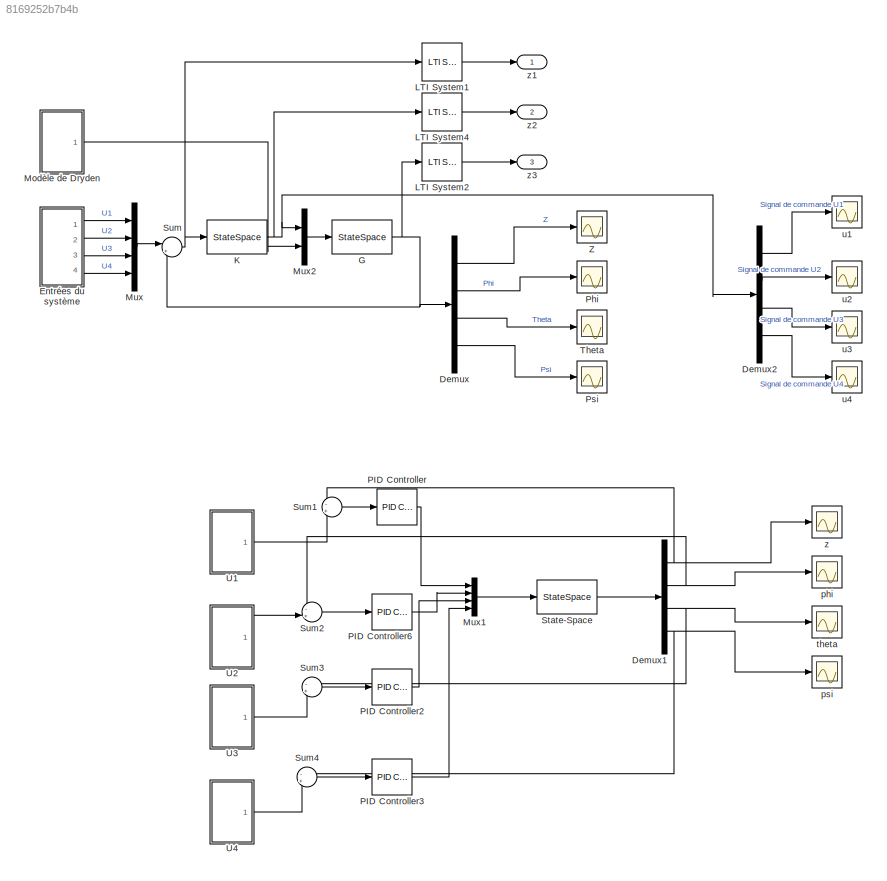
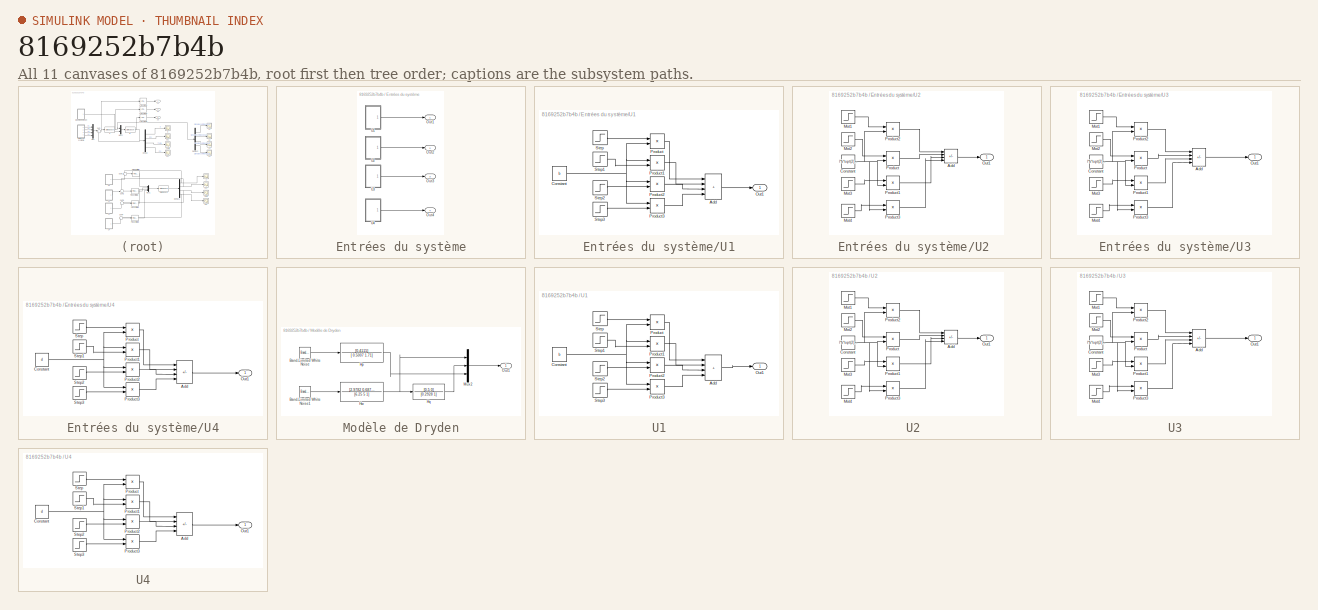
[diagram: thumbnail index - all 11 canvases of the model, root first then tree order]
MODEL slx_8169252b7b4b
KIND model
CONFIG AbsTol = auto
CONFIG EnableMultiTasking = on
CONFIG FixedStep = auto
CONFIG MaxStep = auto
CONFIG MinStep = auto
CONFIG RelTol = 1e-3
CONFIG SampleTimeConstraint = Unconstrained
CONFIG SolverName = VariableStepAuto
CONFIG StartTime = 0.0
CONFIG StopTime = 10
BLOCK [Demux] Demux
  Ports = [1, 4]
BLOCK [Demux] Demux1
  Ports = [1, 4]
BLOCK [Demux] Demux2
  Ports = [1, 4]
BLOCK [SubSystem] Entrées du système
  Ports = [0, 4]
  RequestExecContextInheritance = off
BLOCK [Outport] Entrées du système/Out1
BLOCK [Outport] Entrées du système/Out2
  Port = 2
BLOCK [Outport] Entrées du système/Out3
  Port = 3
BLOCK [Outport] Entrées du système/Out4
  Port = 4
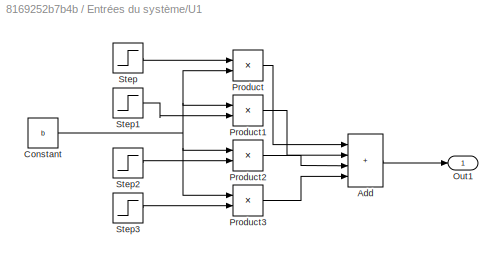
BLOCK [SubSystem] Entrées du système/U1
  Ports = [0, 1]
  RequestExecContextInheritance = off
BLOCK [Sum] Entrées du système/U1/Add
  IconShape = rectangular
  Inputs = ++++
  Ports = [4, 1]
BLOCK [Constant] Entrées du système/U1/Constant
  Value = b
BLOCK [Outport] Entrées du système/U1/Out1
BLOCK [Product] Entrées du système/U1/Product
  Ports = [2, 1]
BLOCK [Product] Entrées du système/U1/Product1
  Ports = [2, 1]
BLOCK [Product] Entrées du système/U1/Product2
  Ports = [2, 1]
BLOCK [Product] Entrées du système/U1/Product3
  Ports = [2, 1]
BLOCK [Step] Entrées du système/U1/Step
  After = om
  SampleTime = 0
  Time = 0
BLOCK [Step] Entrées du système/U1/Step1
  After = om
  SampleTime = 0
  Time = 0
BLOCK [Step] Entrées du système/U1/Step2
  After = om
  SampleTime = 0
  Time = 0
BLOCK [Step] Entrées du système/U1/Step3
  After = om
  SampleTime = 0
  Time = 0
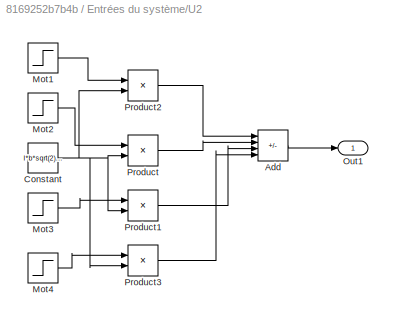
BLOCK [SubSystem] Entrées du système/U2 
  Ports = [0, 1]
  RequestExecContextInheritance = off
BLOCK [Sum] Entrées du système/U2 /Add
  IconShape = rectangular
  Inputs = ++--
  Ports = [4, 1]
BLOCK [Constant] Entrées du système/U2 /Constant
  Value = l*b*sqrt(2)/2
BLOCK [Step] Entrées du système/U2 /Mot1
  After = om
  SampleTime = 0
  Time = 2
BLOCK [Step] Entrées du système/U2 /Mot2
  After = om
  SampleTime = 0
  Time = 2
BLOCK [Step] Entrées du système/U2 /Mot3
  After = om2
  SampleTime = 0
  Time = 2
BLOCK [Step] Entrées du système/U2 /Mot4
  After = om2
  SampleTime = 0
  Time = 2
BLOCK [Outport] Entrées du système/U2 /Out1
BLOCK [Product] Entrées du système/U2 /Product
  Ports = [2, 1]
BLOCK [Product] Entrées du système/U2 /Product1
  Ports = [2, 1]
BLOCK [Product] Entrées du système/U2 /Product2
  Ports = [2, 1]
BLOCK [Product] Entrées du système/U2 /Product3
  Ports = [2, 1]
BLOCK [SubSystem] Entrées du système/U3
  Ports = [0, 1]
  RequestExecContextInheritance = off
BLOCK [Sum] Entrées du système/U3/Add
  IconShape = rectangular
  Inputs = +--+
  Ports = [4, 1]
BLOCK [Constant] Entrées du système/U3/Constant
  Value = l*b*sqrt(2)/2
BLOCK [Step] Entrées du système/U3/Mot1
  After = om
  SampleTime = 0
  Time = 4
BLOCK [Step] Entrées du système/U3/Mot2
  After = om2
  SampleTime = 0
  Time = 4
BLOCK [Step] Entrées du système/U3/Mot3
  After = om2
  SampleTime = 0
  Time = 4
BLOCK [Step] Entrées du système/U3/Mot4
  After = om
  SampleTime = 0
  Time = 4
BLOCK [Outport] Entrées du système/U3/Out1
BLOCK [Product] Entrées du système/U3/Product
  Ports = [2, 1]
BLOCK [Product] Entrées du système/U3/Product1
  Ports = [2, 1]
BLOCK [Product] Entrées du système/U3/Product2
  Ports = [2, 1]
BLOCK [Product] Entrées du système/U3/Product3
  Ports = [2, 1]
BLOCK [SubSystem] Entrées du système/U4
  Ports = [0, 1]
  RequestExecContextInheritance = off
BLOCK [Sum] Entrées du système/U4/Add
  IconShape = rectangular
  Inputs = +-+-
  Ports = [4, 1]
BLOCK [Constant] Entrées du système/U4/Constant
  Value = d
BLOCK [Outport] Entrées du système/U4/Out1
BLOCK [Product] Entrées du système/U4/Product
  Ports = [2, 1]
BLOCK [Product] Entrées du système/U4/Product1
  Ports = [2, 1]
BLOCK [Product] Entrées du système/U4/Product2
  Ports = [2, 1]
BLOCK [Product] Entrées du système/U4/Product3
  Ports = [2, 1]
BLOCK [Step] Entrées du système/U4/Step
  After = om
  SampleTime = 0
  Time = 6
BLOCK [Step] Entrées du système/U4/Step1
  After = om2
  SampleTime = 0
  Time = 6
BLOCK [Step] Entrées du système/U4/Step2
  After = om
  SampleTime = 0
  Time = 6
BLOCK [Step] Entrées du système/U4/Step3
  After = om2
  SampleTime = 0
  Time = 6
BLOCK [StateSpace] G
  A = A
  B = BW
  C = C
  D = DW
  InitialCondition = 0
  Ports = [1, 1]
BLOCK [StateSpace] K
  A = K.A
  B = K.B
  C = K.C
  D = K.D
  InitialCondition = 0
  Ports = [1, 1]
BLOCK [Reference] LTI System1  REF=cstblocks/LTI System
  Ports = [1, 1]
  SourceBlock = cstblocks/LTI System
  SourceProductBaseCode = CT
  SourceType = LTI Block
BLOCK [Reference] LTI System2  REF=cstblocks/LTI System
  Ports = [1, 1]
  SourceBlock = cstblocks/LTI System
  SourceProductBaseCode = CT
  SourceType = LTI Block
BLOCK [Reference] LTI System4  REF=cstblocks/LTI System
  Ports = [1, 1]
  SourceBlock = cstblocks/LTI System
  SourceProductBaseCode = CT
  SourceType = LTI Block
BLOCK [SubSystem] Modèle de Dryden
  Ports = [0, 1]
  RequestExecContextInheritance = off
BLOCK [Reference] Modèle de Dryden/Band-Limited White Noise  REF=simulink/Sources/Band-Limited
White Noise
  Ports = [0, 1]
  SourceBlock = simulink/Sources/Band-Limited\nWhite Noise
  SourceProductBaseCode = SL
  SourceType = Band-Limited White Noise.
BLOCK [Reference] Modèle de Dryden/Band-Limited White Noise1  REF=simulink/Sources/Band-Limited
White Noise
  Ports = [0, 1]
  SourceBlock = simulink/Sources/Band-Limited\nWhite Noise
  SourceProductBaseCode = SL
  SourceType = Band-Limited White Noise.
BLOCK [TransferFcn] Modèle de Dryden/Hp
  Denominator = [ 0.5007 1.71]
  Numerator = [0.4115]
BLOCK [TransferFcn] Modèle de Dryden/Hq
  Denominator = [0.2928 1]
  Numerator = [0.5 0]
BLOCK [TransferFcn] Modèle de Dryden/Hw
  Denominator = [6.25 5 1]
  Numerator = [2.9782 0.6878]
BLOCK [Mux] Modèle de Dryden/Mux2
  DisplayOption = bar
  Inputs = 3
  Ports = [3, 1]
BLOCK [Outport] Modèle de Dryden/Out1
BLOCK [Mux] Mux
  DisplayOption = bar
  Ports = [4, 1]
BLOCK [Mux] Mux1
  DisplayOption = bar
  Ports = [4, 1]
BLOCK [Mux] Mux2
  DisplayOption = bar
  Inputs = 2
  Ports = [2, 1]
BLOCK [Reference] PID Controller  REF=pid_lib/PID Controller
  Ports = [1, 1]
  SourceBlock = pid_lib/PID Controller
  SourceProductBaseCode = SL
  SourceType = PID 1dof
BLOCK [Reference] PID Controller2  REF=pid_lib/PID Controller
  Ports = [1, 1]
  SourceBlock = pid_lib/PID Controller
  SourceProductBaseCode = SL
  SourceType = PID 1dof
BLOCK [Reference] PID Controller3  REF=pid_lib/PID Controller
  Ports = [1, 1]
  SourceBlock = pid_lib/PID Controller
  SourceProductBaseCode = SL
  SourceType = PID 1dof
BLOCK [Reference] PID Controller6  REF=pid_lib/PID Controller
  Ports = [1, 1]
  SourceBlock = pid_lib/PID Controller
  SourceProductBaseCode = SL
  SourceType = PID 1dof
BLOCK [Scope] Phi
  Floating = off
  NumInputPorts = 1
  Ports = [1]
  ScopeSpecificationString = Simulink.scopes.TimeScopeBlockCfg('CurrentConfiguration', extmgr.ConfigurationSet(extmgr.Configuration('Core','General UI',true,'FigureColor',[0.8 0.8 0.8]),extmgr.Configuration('Core','Source UI',true),extmgr.Configuration('Sources','WiredSimulink',true,'DataLoggingVariableName','ScopeData5'),extmgr.Configuration('Visuals','Time Domain',true,'SerializedDisplays',{struct('MinYLimReal','-0.35829','...<+1695ch>
BLOCK [Scope] Psi
  Floating = off
  NumInputPorts = 1
  Ports = [1]
  ScopeSpecificationString = Simulink.scopes.TimeScopeBlockCfg('CurrentConfiguration', extmgr.ConfigurationSet(extmgr.Configuration('Core','General UI',true,'FigureColor',[0.831372549019608 0.815686274509804 0.784313725490196]),extmgr.Configuration('Core','Source UI',true),extmgr.Configuration('Sources','WiredSimulink',true,'DataLoggingVariableName','ScopeData1'),extmgr.Configuration('Visuals','Time Domain',true,'SerializedDi...<+1697ch>
BLOCK [StateSpace] State-Space
  A = A
  B = B
  C = C
  D = D
  InitialCondition = 0
  Ports = [1, 1]
BLOCK [Sum] Sum
  Inputs = |+-
  Ports = [2, 1]
BLOCK [Sum] Sum1
  Inputs = -+
  Ports = [2, 1]
BLOCK [Sum] Sum2
  Inputs = -+
  Ports = [2, 1]
BLOCK [Sum] Sum3
  Inputs = -+
  Ports = [2, 1]
BLOCK [Sum] Sum4
  Inputs = -+
  Ports = [2, 1]
BLOCK [Scope] Theta
  Floating = off
  NumInputPorts = 1
  Ports = [1]
  ScopeSpecificationString = Simulink.scopes.TimeScopeBlockCfg('CurrentConfiguration', extmgr.ConfigurationSet(extmgr.Configuration('Core','General UI',true,'FigureColor',[0.831372549019608 0.815686274509804 0.784313725490196]),extmgr.Configuration('Core','Source UI',true),extmgr.Configuration('Sources','WiredSimulink',true),extmgr.Configuration('Visuals','Time Domain',true,'SerializedDisplays',{struct('MinYLimReal','-0.0397'...<+1660ch>
BLOCK [SubSystem] U1
  Ports = [0, 1]
  RequestExecContextInheritance = off
BLOCK [Sum] U1/Add
  IconShape = rectangular
  Inputs = ++++
  Ports = [4, 1]
BLOCK [Constant] U1/Constant
  Value = b
BLOCK [Outport] U1/Out1
BLOCK [Product] U1/Product
  Ports = [2, 1]
BLOCK [Product] U1/Product1
  Ports = [2, 1]
BLOCK [Product] U1/Product2
  Ports = [2, 1]
BLOCK [Product] U1/Product3
  Ports = [2, 1]
BLOCK [Step] U1/Step
  After = om
  SampleTime = 0
  Time = 0
BLOCK [Step] U1/Step1
  After = om
  SampleTime = 0
  Time = 0
BLOCK [Step] U1/Step2
  After = om
  SampleTime = 0
  Time = 0
BLOCK [Step] U1/Step3
  After = om
  SampleTime = 0
  Time = 0
BLOCK [SubSystem] U2 
  Ports = [0, 1]
  RequestExecContextInheritance = off
BLOCK [Sum] U2 /Add
  IconShape = rectangular
  Inputs = ++--
  Ports = [4, 1]
BLOCK [Constant] U2 /Constant
  Value = l*b*sqrt(2)/2
BLOCK [Step] U2 /Mot1
  After = om
  SampleTime = 0
  Time = 2
BLOCK [Step] U2 /Mot2
  After = om
  SampleTime = 0
  Time = 2
BLOCK [Step] U2 /Mot3
  After = om2
  SampleTime = 0
  Time = 2
BLOCK [Step] U2 /Mot4
  After = om2
  SampleTime = 0
  Time = 2
BLOCK [Outport] U2 /Out1
BLOCK [Product] U2 /Product
  Ports = [2, 1]
BLOCK [Product] U2 /Product1
  Ports = [2, 1]
BLOCK [Product] U2 /Product2
  Ports = [2, 1]
BLOCK [Product] U2 /Product3
  Ports = [2, 1]
BLOCK [SubSystem] U3
  Ports = [0, 1]
  RequestExecContextInheritance = off
BLOCK [Sum] U3/Add
  IconShape = rectangular
  Inputs = +--+
  Ports = [4, 1]
BLOCK [Constant] U3/Constant
  Value = l*b*sqrt(2)/2
BLOCK [Step] U3/Mot1
  After = om
  SampleTime = 0
  Time = 2
BLOCK [Step] U3/Mot2
  After = om2
  SampleTime = 0
  Time = 2
BLOCK [Step] U3/Mot3
  After = om2
  SampleTime = 0
  Time = 2
BLOCK [Step] U3/Mot4
  After = om
  SampleTime = 0
  Time = 2
BLOCK [Outport] U3/Out1
BLOCK [Product] U3/Product
  Ports = [2, 1]
BLOCK [Product] U3/Product1
  Ports = [2, 1]
BLOCK [Product] U3/Product2
  Ports = [2, 1]
BLOCK [Product] U3/Product3
  Ports = [2, 1]
BLOCK [SubSystem] U4
  Ports = [0, 1]
  RequestExecContextInheritance = off
BLOCK [Sum] U4/Add
  IconShape = rectangular
  Inputs = +-+-
  Ports = [4, 1]
BLOCK [Constant] U4/Constant
  Value = d
BLOCK [Outport] U4/Out1
BLOCK [Product] U4/Product
  Ports = [2, 1]
BLOCK [Product] U4/Product1
  Ports = [2, 1]
BLOCK [Product] U4/Product2
  Ports = [2, 1]
BLOCK [Product] U4/Product3
  Ports = [2, 1]
BLOCK [Step] U4/Step
  After = om
  SampleTime = 0
  Time = 2
BLOCK [Step] U4/Step1
  After = om2
  SampleTime = 0
  Time = 2
BLOCK [Step] U4/Step2
  After = om
  SampleTime = 0
  Time = 2
BLOCK [Step] U4/Step3
  After = om2
  SampleTime = 0
  Time = 2
BLOCK [Scope] Z
  Floating = off
  NumInputPorts = 1
  Ports = [1]
  ScopeSpecificationString = Simulink.scopes.TimeScopeBlockCfg('CurrentConfiguration', extmgr.ConfigurationSet(extmgr.Configuration('Core','General UI',true,'FigureColor',[0.8 0.8 0.8]),extmgr.Configuration('Core','Source UI',true),extmgr.Configuration('Sources','WiredSimulink',true,'DataLoggingVariableName','ScopeData4'),extmgr.Configuration('Visuals','Time Domain',true,'SerializedDisplays',{struct('MinYLimReal','-0.65869','...<+1691ch>
BLOCK [Scope] phi
  Floating = off
  NumInputPorts = 1
  Ports = [1]
  ScopeSpecificationString = Simulink.scopes.TimeScopeBlockCfg('CurrentConfiguration', extmgr.ConfigurationSet(extmgr.Configuration('Core','General UI',true),extmgr.Configuration('Core','Source UI',true),extmgr.Configuration('Sources','WiredSimulink',true,'DataLoggingVariableName','ScopeData1'),extmgr.Configuration('Visuals','Time Domain',true,'SerializedDisplays',{struct('MinYLimReal','-0.04407','MaxYLimReal','0.39665','YLab...<+1436ch>
BLOCK [Scope] psi
  Floating = off
  NumInputPorts = 1
  Ports = [1]
  ScopeSpecificationString = Simulink.scopes.TimeScopeBlockCfg('CurrentConfiguration', extmgr.ConfigurationSet(extmgr.Configuration('Core','General UI',true),extmgr.Configuration('Core','Source UI',true),extmgr.Configuration('Sources','WiredSimulink',true,'DataLoggingVariableName','ScopeData2'),extmgr.Configuration('Visuals','Time Domain',true,'SerializedDisplays',{struct('MinYLimReal','-0.00659','MaxYLimReal','0.05935','YLab...<+1461ch>
BLOCK [Scope] theta
  Floating = off
  NumInputPorts = 1
  Ports = [1]
  ScopeSpecificationString = Simulink.scopes.TimeScopeBlockCfg('CurrentConfiguration', extmgr.ConfigurationSet(extmgr.Configuration('Core','General UI',true),extmgr.Configuration('Core','Source UI',true),extmgr.Configuration('Sources','WiredSimulink',true,'DataLoggingVariableName','ScopeData3'),extmgr.Configuration('Visuals','Time Domain',true,'SerializedDisplays',{struct('MinYLimReal','-0.04476','MaxYLimReal','0.40281','YLab...<+1461ch>
BLOCK [Scope] u1
  Floating = off
  NumInputPorts = 1
  Ports = [1]
  ScopeSpecificationString = Simulink.scopes.TimeScopeBlockCfg('CurrentConfiguration', extmgr.ConfigurationSet(extmgr.Configuration('Core','General UI',true,'FigureColor',[0.831372549019608 0.815686274509804 0.784313725490196]),extmgr.Configuration('Core','Source UI',true),extmgr.Configuration('Sources','WiredSimulink',true,'DataLoggingVariableName','ScopeData1'),extmgr.Configuration('Visuals','Time Domain',true,'SerializedDi...<+1841ch>
BLOCK [Scope] u2
  Floating = off
  NumInputPorts = 1
  Ports = [1]
  ScopeSpecificationString = Simulink.scopes.TimeScopeBlockCfg('CurrentConfiguration', extmgr.ConfigurationSet(extmgr.Configuration('Core','General UI',true,'FigureColor',[0.831372549019608 0.815686274509804 0.784313725490196]),extmgr.Configuration('Core','Source UI',true),extmgr.Configuration('Sources','WiredSimulink',true,'DataLoggingVariableName','ScopeData2'),extmgr.Configuration('Visuals','Time Domain',true,'SerializedDi...<+1860ch>
BLOCK [Scope] u3
  Floating = off
  NumInputPorts = 1
  Ports = [1]
  ScopeSpecificationString = Simulink.scopes.TimeScopeBlockCfg('CurrentConfiguration', extmgr.ConfigurationSet(extmgr.Configuration('Core','General UI',true,'FigureColor',[0.831372549019608 0.815686274509804 0.784313725490196]),extmgr.Configuration('Core','Source UI',true),extmgr.Configuration('Sources','WiredSimulink',true,'DataLoggingVariableName','ScopeData3'),extmgr.Configuration('Visuals','Time Domain',true,'SerializedDi...<+1860ch>
BLOCK [Scope] u4
  Floating = off
  NumInputPorts = 1
  Ports = [1]
  ScopeSpecificationString = Simulink.scopes.TimeScopeBlockCfg('CurrentConfiguration', extmgr.ConfigurationSet(extmgr.Configuration('Core','General UI',true,'FigureColor',[0.831372549019608 0.815686274509804 0.784313725490196]),extmgr.Configuration('Core','Source UI',true),extmgr.Configuration('Sources','WiredSimulink',true,'DataLoggingVariableName','ScopeData4'),extmgr.Configuration('Visuals','Time Domain',true,'SerializedDi...<+1860ch>
BLOCK [Scope] z
  Floating = off
  NumInputPorts = 1
  Ports = [1]
  ScopeSpecificationString = Simulink.scopes.TimeScopeBlockCfg('CurrentConfiguration', extmgr.ConfigurationSet(extmgr.Configuration('Core','General UI',true),extmgr.Configuration('Core','Source UI',true),extmgr.Configuration('Sources','WiredSimulink',true,'DataLoggingVariableName','ScopeData4'),extmgr.Configuration('Visuals','Time Domain',true,'SerializedDisplays',{struct('MinYLimReal','-0.75088','MaxYLimReal','6.75789','YLab...<+1745ch>
BLOCK [Outport] z1
BLOCK [Outport] z2
  Port = 2
BLOCK [Outport] z3
  Port = 3
NET Demux1:1 -> Sum1:1, z:1
NET Demux1:2 -> Sum2:1, phi:1
NET Demux1:3 -> Sum3:1, theta:1
NET Demux1:4 -> Sum4:1, psi:1
LINE Demux2:1 -> u1:1
LINE Demux2:2 -> u2:1
LINE Demux2:3 -> u3:1
LINE Demux2:4 -> u4:1
LINE Demux:1 -> Z:1
LINE Demux:2 -> Phi:1
LINE Demux:3 -> Theta:1
LINE Demux:4 -> Psi:1
LINE Entrées du système/U1/Add:1 -> Entrées du système/U1/Out1:1
NET Entrées du système/U1/Constant:1 -> Entrées du système/U1/Product1:1, Entrées du système/U1/Product2:1, Entrées du système/U1/Product3:1, Entrées du système/U1/Product:2
LINE Entrées du système/U1/Product1:1 -> Entrées du système/U1/Add:2
LINE Entrées du système/U1/Product2:1 -> Entrées du système/U1/Add:3
LINE Entrées du système/U1/Product3:1 -> Entrées du système/U1/Add:4
LINE Entrées du système/U1/Product:1 -> Entrées du système/U1/Add:1
LINE Entrées du système/U1/Step1:1 -> Entrées du système/U1/Product1:2
LINE Entrées du système/U1/Step2:1 -> Entrées du système/U1/Product2:2
LINE Entrées du système/U1/Step3:1 -> Entrées du système/U1/Product3:2
LINE Entrées du système/U1/Step:1 -> Entrées du système/U1/Product:1
LINE Entrées du système/U1:1 -> Entrées du système/Out1:1
LINE Entrées du système/U2 /Add:1 -> Entrées du système/U2 /Out1:1
NET Entrées du système/U2 /Constant:1 -> Entrées du système/U2 /Product1:2, Entrées du système/U2 /Product2:2, Entrées du système/U2 /Product3:2, Entrées du système/U2 /Product:2
LINE Entrées du système/U2 /Mot1:1 -> Entrées du système/U2 /Product2:1
LINE Entrées du système/U2 /Mot2:1 -> Entrées du système/U2 /Product:1
LINE Entrées du système/U2 /Mot3:1 -> Entrées du système/U2 /Product1:1
LINE Entrées du système/U2 /Mot4:1 -> Entrées du système/U2 /Product3:1
LINE Entrées du système/U2 /Product1:1 -> Entrées du système/U2 /Add:3
LINE Entrées du système/U2 /Product2:1 -> Entrées du système/U2 /Add:1
LINE Entrées du système/U2 /Product3:1 -> Entrées du système/U2 /Add:4
LINE Entrées du système/U2 /Product:1 -> Entrées du système/U2 /Add:2
LINE Entrées du système/U2 :1 -> Entrées du système/Out2:1
LINE Entrées du système/U3/Add:1 -> Entrées du système/U3/Out1:1
NET Entrées du système/U3/Constant:1 -> Entrées du système/U3/Product1:2, Entrées du système/U3/Product2:2, Entrées du système/U3/Product3:2, Entrées du système/U3/Product:2
LINE Entrées du système/U3/Mot1:1 -> Entrées du système/U3/Product2:1
LINE Entrées du système/U3/Mot2:1 -> Entrées du système/U3/Product:1
LINE Entrées du système/U3/Mot3:1 -> Entrées du système/U3/Product1:1
LINE Entrées du système/U3/Mot4:1 -> Entrées du système/U3/Product3:1
LINE Entrées du système/U3/Product1:1 -> Entrées du système/U3/Add:3
LINE Entrées du système/U3/Product2:1 -> Entrées du système/U3/Add:1
LINE Entrées du système/U3/Product3:1 -> Entrées du système/U3/Add:4
LINE Entrées du système/U3/Product:1 -> Entrées du système/U3/Add:2
LINE Entrées du système/U3:1 -> Entrées du système/Out3:1
LINE Entrées du système/U4/Add:1 -> Entrées du système/U4/Out1:1
NET Entrées du système/U4/Constant:1 -> Entrées du système/U4/Product1:1, Entrées du système/U4/Product2:1, Entrées du système/U4/Product3:1, Entrées du système/U4/Product:2
LINE Entrées du système/U4/Product1:1 -> Entrées du système/U4/Add:2
LINE Entrées du système/U4/Product2:1 -> Entrées du système/U4/Add:3
LINE Entrées du système/U4/Product3:1 -> Entrées du système/U4/Add:4
LINE Entrées du système/U4/Product:1 -> Entrées du système/U4/Add:1
LINE Entrées du système/U4/Step1:1 -> Entrées du système/U4/Product1:2
LINE Entrées du système/U4/Step2:1 -> Entrées du système/U4/Product2:2
LINE Entrées du système/U4/Step3:1 -> Entrées du système/U4/Product3:2
LINE Entrées du système/U4/Step:1 -> Entrées du système/U4/Product:1
LINE Entrées du système/U4:1 -> Entrées du système/Out4:1
LINE Entrées du système:1 -> Mux:1
LINE Entrées du système:2 -> Mux:2
LINE Entrées du système:3 -> Mux:3
LINE Entrées du système:4 -> Mux:4
NET G:1 -> Demux:1, LTI System2:1, Sum:2
NET K:1 -> Demux2:1, LTI System4:1, Mux2:1
LINE LTI System1:1 -> z1:1
LINE LTI System2:1 -> z3:1
LINE LTI System4:1 -> z2:1
LINE Modèle de Dryden/Band-Limited White Noise1:1 -> Modèle de Dryden/Hw:1
LINE Modèle de Dryden/Band-Limited White Noise:1 -> Modèle de Dryden/Hp:1
LINE Modèle de Dryden/Hp:1 -> Modèle de Dryden/Mux2:3
LINE Modèle de Dryden/Hq:1 -> Modèle de Dryden/Mux2:2
NET Modèle de Dryden/Hw:1 -> Modèle de Dryden/Hq:1, Modèle de Dryden/Mux2:1
LINE Modèle de Dryden/Mux2:1 -> Modèle de Dryden/Out1:1
LINE Modèle de Dryden:1 -> Mux2:2
LINE Mux1:1 -> State-Space:1
LINE Mux2:1 -> G:1
LINE Mux:1 -> Sum:1
LINE PID Controller2:1 -> Mux1:3
LINE PID Controller3:1 -> Mux1:4
LINE PID Controller6:1 -> Mux1:2
LINE PID Controller:1 -> Mux1:1
LINE State-Space:1 -> Demux1:1
LINE Sum1:1 -> PID Controller:1
LINE Sum2:1 -> PID Controller6:1
LINE Sum3:1 -> PID Controller2:1
LINE Sum4:1 -> PID Controller3:1
NET Sum:1 -> K:1, LTI System1:1
LINE U1/Add:1 -> U1/Out1:1
NET U1/Constant:1 -> U1/Product1:1, U1/Product2:1, U1/Product3:1, U1/Product:2
LINE U1/Product1:1 -> U1/Add:2
LINE U1/Product2:1 -> U1/Add:3
LINE U1/Product3:1 -> U1/Add:4
LINE U1/Product:1 -> U1/Add:1
LINE U1/Step1:1 -> U1/Product1:2
LINE U1/Step2:1 -> U1/Product2:2
LINE U1/Step3:1 -> U1/Product3:2
LINE U1/Step:1 -> U1/Product:1
LINE U1:1 -> Sum1:2
LINE U2 /Add:1 -> U2 /Out1:1
NET U2 /Constant:1 -> U2 /Product1:2, U2 /Product2:2, U2 /Product3:2, U2 /Product:2
LINE U2 /Mot1:1 -> U2 /Product2:1
LINE U2 /Mot2:1 -> U2 /Product:1
LINE U2 /Mot3:1 -> U2 /Product1:1
LINE U2 /Mot4:1 -> U2 /Product3:1
LINE U2 /Product1:1 -> U2 /Add:3
LINE U2 /Product2:1 -> U2 /Add:1
LINE U2 /Product3:1 -> U2 /Add:4
LINE U2 /Product:1 -> U2 /Add:2
LINE U2 :1 -> Sum2:2
LINE U3/Add:1 -> U3/Out1:1
NET U3/Constant:1 -> U3/Product1:2, U3/Product2:2, U3/Product3:2, U3/Product:2
LINE U3/Mot1:1 -> U3/Product2:1
LINE U3/Mot2:1 -> U3/Product:1
LINE U3/Mot3:1 -> U3/Product1:1
LINE U3/Mot4:1 -> U3/Product3:1
LINE U3/Product1:1 -> U3/Add:3
LINE U3/Product2:1 -> U3/Add:1
LINE U3/Product3:1 -> U3/Add:4
LINE U3/Product:1 -> U3/Add:2
LINE U3:1 -> Sum3:2
LINE U4/Add:1 -> U4/Out1:1
NET U4/Constant:1 -> U4/Product1:1, U4/Product2:1, U4/Product3:1, U4/Product:2
LINE U4/Product1:1 -> U4/Add:2
LINE U4/Product2:1 -> U4/Add:3
LINE U4/Product3:1 -> U4/Add:4
LINE U4/Product:1 -> U4/Add:1
LINE U4/Step1:1 -> U4/Product1:2
LINE U4/Step2:1 -> U4/Product2:2
LINE U4/Step3:1 -> U4/Product3:2
LINE U4/Step:1 -> U4/Product:1
LINE U4:1 -> Sum4:2
note: NET lines group one-source signal fan-out (src -> all destinations, sorted); 1:1 wires keep LINE
